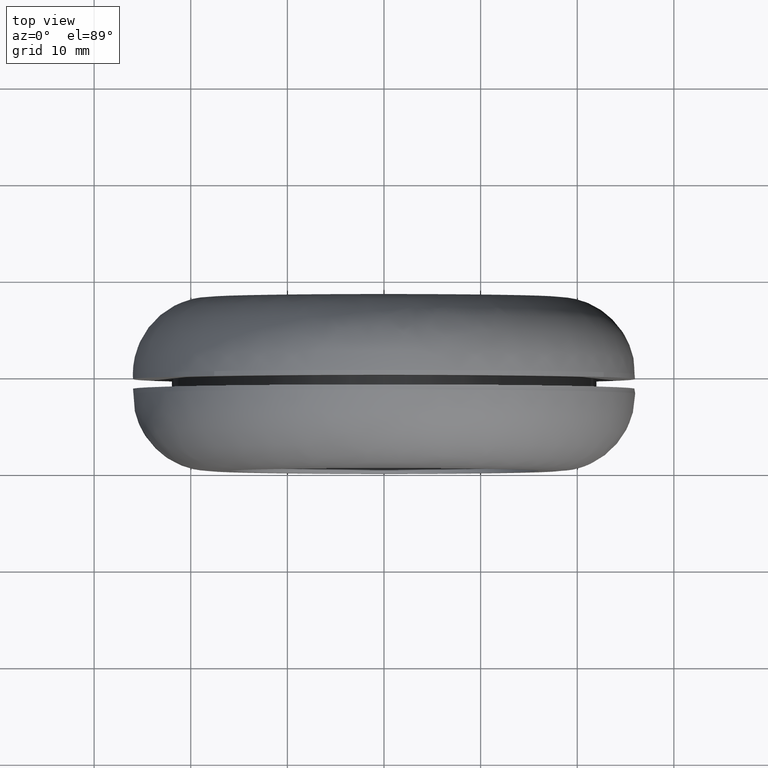
[diagram: clean part render]
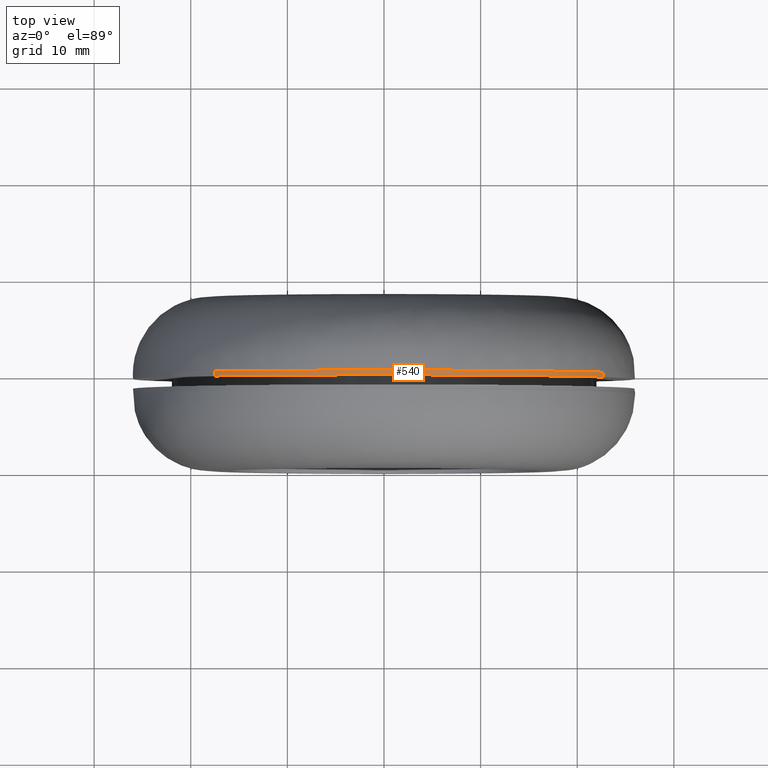
[diagram: same view with one face highlighted and labeled with its STEP entity id]
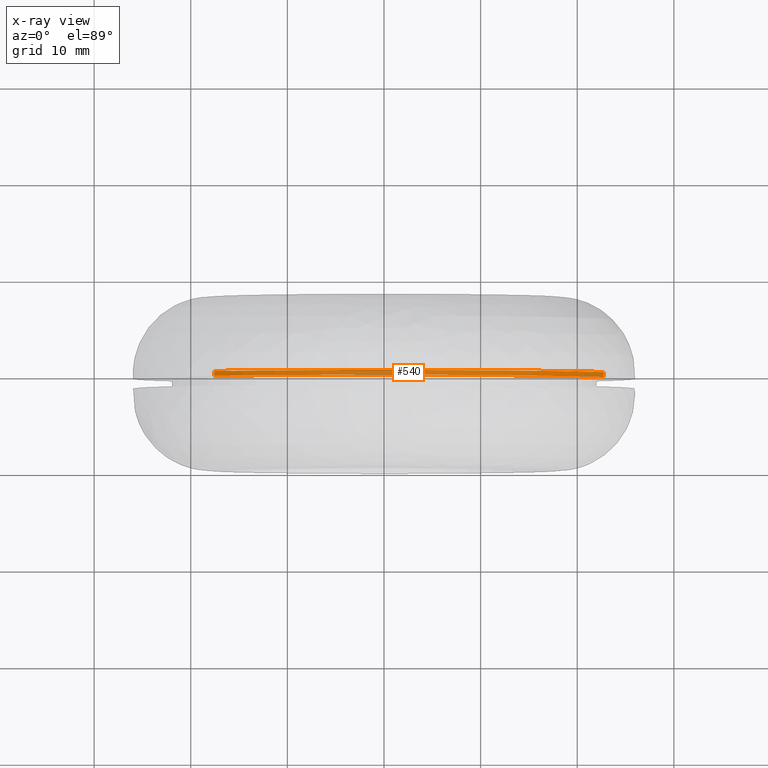
[diagram: x-ray of the same camera — body ghosted, the highlighted face saturated]
A machine part, top view. The second image highlights one B-rep face of the part: STEP entity #540.
The next image is the same camera in x-ray: the body ghosted, the highlighted face saturated — about 0% of this face is hidden behind the body in this view.
In plain terms, the highlighted face is a freeform B-spline surface patch.
Its self-contained STEP definition (entity closure, byte-faithful):
#446=CARTESIAN_POINT('',(22.748607113521377,10.012500000000001,12.589713038613862));
#447=CARTESIAN_POINT('',(21.254211966717687,10.012499999999999,15.289965853171521));
#448=CARTESIAN_POINT('',(19.169210757063219,10.012499999999999,17.565345398007160));
#449=CARTESIAN_POINT('',(1.603865359056054,10.012499999999999,36.734556155070372));
#450=CARTESIAN_POINT('',(-17.565345398007160,10.012499999999999,19.169210757063219));
#451=CARTESIAN_POINT('',(22.748607113521377,9.487187499999997,12.589713038613862));
#452=CARTESIAN_POINT('',(21.254211966717687,9.487187499999997,15.289965853171521));
#453=CARTESIAN_POINT('',(19.169210757063219,9.487187499999997,17.565345398007160));
#454=CARTESIAN_POINT('',(1.603865359056054,9.487187499999997,36.734556155070372));
#455=CARTESIAN_POINT('',(-17.565345398007160,9.487187499999997,19.169210757063219));
#463=(BOUNDED_SURFACE()B_SPLINE_SURFACE(2,1,((#446,#451),(#447,#452),(#448,#453),(#449,#454),(#450,#455)),.UNSPECIFIED.,.F.,.F.,.U.)B_SPLINE_SURFACE_WITH_KNOTS((3,2,3),(2,2),(0.0,6.892513677888309,49.970724164690182),(0.0,1.0),.UNSPECIFIED.)GEOMETRIC_REPRESENTATION_ITEM()RATIONAL_B_SPLINE_SURFACE(((0.921270302782944,0.921270302782944),(0.953137084989848,0.953137084989848),(1.0,1.0),(0.707106781186548,0.707106781186548),(1.0,1.0)))REPRESENTATION_ITEM('')SURFACE());
#464=CARTESIAN_POINT('',(22.748609441721719,9.999995030012045,12.589708831735640));
#465=VERTEX_POINT('',#464);
#466=CARTESIAN_POINT('',(0.0,10.0,26.0));
#467=VERTEX_POINT('',#466);
#468=CARTESIAN_POINT('',(22.748609441721715,9.999995030012045,12.589708831735633));
#469=CARTESIAN_POINT('',(15.326983887434320,9.999997948372934,26.000000000000131));
#470=CARTESIAN_POINT('',(0.0,10.0,26.0));
#478=(BOUNDED_CURVE()B_SPLINE_CURVE(2,(#468,#469,#470),.UNSPECIFIED.,.F.,.U.)B_SPLINE_CURVE_WITH_KNOTS((3,3),(0.332484260513151,0.500000000000000),.UNSPECIFIED.)CURVE()GEOMETRIC_REPRESENTATION_ITEM()RATIONAL_B_SPLINE_CURVE((0.870495160132561,0.803743103439125,1.0))REPRESENTATION_ITEM(''));
#479=EDGE_CURVE('',#465,#467,#478,.T.);
#480=ORIENTED_EDGE('',*,*,#479,.T.);
#481=CARTESIAN_POINT('',(-17.565344340139308,9.999996405808178,19.169211726417540));
#482=VERTEX_POINT('',#481);
#483=CARTESIAN_POINT('',(0.0,10.0,26.0));
#484=CARTESIAN_POINT('',(-10.110846202271471,9.999998505180292,25.999999999999964));
#485=CARTESIAN_POINT('',(-17.565344340139305,9.999996405808176,19.169211726417540));
#493=(BOUNDED_CURVE()B_SPLINE_CURVE(2,(#483,#484,#485),.UNSPECIFIED.,.F.,.U.)B_SPLINE_CURVE_WITH_KNOTS((3,3),(0.500000000000000,0.618415200753254),.UNSPECIFIED.)CURVE()GEOMETRIC_REPRESENTATION_ITEM()RATIONAL_B_SPLINE_CURVE((1.0,0.861267962779753,0.853959781866254))REPRESENTATION_ITEM(''));
#494=EDGE_CURVE('',#467,#482,#493,.T.);
#495=ORIENTED_EDGE('',*,*,#494,.T.);
#496=CARTESIAN_POINT('',(-17.565344368191440,9.500000000000000,19.169211700715369));
#497=VERTEX_POINT('',#496);
#498=CARTESIAN_POINT('',(-17.565344340139308,9.999996405808178,19.169211726417540));
#499=CARTESIAN_POINT('',(-17.565344368191440,9.500000000000000,19.169211700715369));
#500=QUASI_UNIFORM_CURVE('',1,(#498,#499),.UNSPECIFIED.,.F.,.U.);
#501=EDGE_CURVE('',#482,#497,#500,.T.);
#502=ORIENTED_EDGE('',*,*,#501,.T.);
#503=CARTESIAN_POINT('',(0.0,9.500000000000000,26.0));
#504=VERTEX_POINT('',#503);
#505=CARTESIAN_POINT('',(0.0,9.500000000000000,26.0));
#506=CARTESIAN_POINT('',(-10.110846224171421,9.500000000000000,26.0));
#507=CARTESIAN_POINT('',(-17.565344368191464,9.499999999999998,19.169211700715408));
#515=(BOUNDED_CURVE()B_SPLINE_CURVE(2,(#505,#506,#507),.UNSPECIFIED.,.F.,.U.)B_SPLINE_CURVE_WITH_KNOTS((3,3),(0.500000000000000,0.618415200974131),.UNSPECIFIED.)CURVE()GEOMETRIC_REPRESENTATION_ITEM()RATIONAL_B_SPLINE_CURVE((1.0,0.861267962520980,0.853959781838990))REPRESENTATION_ITEM(''));
#516=EDGE_CURVE('',#504,#497,#515,.T.);
#517=ORIENTED_EDGE('',*,*,#516,.F.);
#518=CARTESIAN_POINT('',(22.748609258258821,9.500000000000000,12.589709163242860));
#519=VERTEX_POINT('',#518);
#520=CARTESIAN_POINT('',(22.748609258258824,9.500000000000000,12.589709163242860));
#521=CARTESIAN_POINT('',(15.326983632157340,9.500000000000000,26.000000000000004));
#522=CARTESIAN_POINT('',(0.0,9.500000000000000,26.0));
#530=(BOUNDED_CURVE()B_SPLINE_CURVE(2,(#520,#521,#522),.UNSPECIFIED.,.F.,.U.)B_SPLINE_CURVE_WITH_KNOTS((3,3),(0.332484262755645,0.500000000000000),.UNSPECIFIED.)CURVE()GEOMETRIC_REPRESENTATION_ITEM()RATIONAL_B_SPLINE_CURVE((0.870495158345373,0.803743106066369,1.0))REPRESENTATION_ITEM(''));
#531=EDGE_CURVE('',#519,#504,#530,.T.);
#532=ORIENTED_EDGE('',*,*,#531,.F.);
#533=CARTESIAN_POINT('',(22.748609441721719,9.999995030012045,12.589708831735640));
#534=CARTESIAN_POINT('',(22.748609258258821,9.500000000000000,12.589709163242860));
#535=QUASI_UNIFORM_CURVE('',1,(#533,#534),.UNSPECIFIED.,.F.,.U.);
#536=EDGE_CURVE('',#465,#519,#535,.T.);
#537=ORIENTED_EDGE('',*,*,#536,.F.);
#538=EDGE_LOOP('',(#480,#495,#502,#517,#532,#537));
#539=FACE_OUTER_BOUND('',#538,.T.);
#540=ADVANCED_FACE('',(#539),#463,.T.);